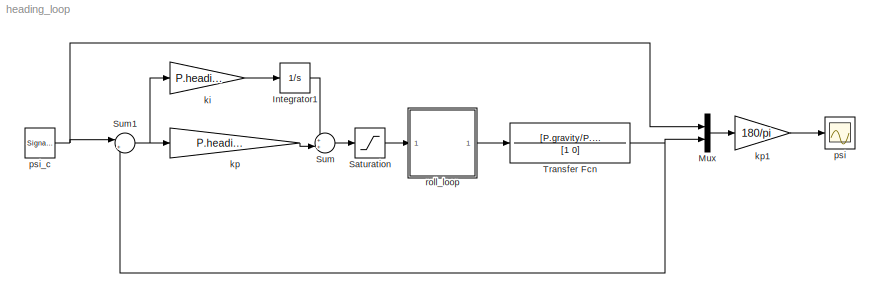
MODEL heading_loop
KIND model
BLOCK [Integrator] Integrator1
  Ports = [1, 1]
  SID = 10
BLOCK [Mux] Mux
  DisplayOption = bar
  Inputs = 2
  Ports = [2, 1]
  SID = 12
BLOCK [Saturate] Saturation
  LowerLimit = -30*pi/180
  OutDataType = fixdt(1, 16)
  OutScaling = 2^0
  SID = 4
  UpperLimit = 30*pi/180
BLOCK [Sum] Sum
  IconShape = round
  InputSameDT = off
  Inputs = ++|
  OutDataType = fixdt(1, 16)
  OutDataTypeMode = Inherit via internal rule
  OutDataTypeStr = Inherit: Inherit via internal rule
  OutScaling = 2^0
  Ports = [2, 1]
  SID = 5
  SaturateOnIntegerOverflow = off
BLOCK [Sum] Sum1
  IconShape = round
  InputSameDT = off
  Inputs = |+-
  OutDataType = fixdt(1, 16)
  OutDataTypeMode = Inherit via internal rule
  OutDataTypeStr = Inherit: Inherit via internal rule
  OutScaling = 2^0
  Ports = [2, 1]
  SID = 9
  SaturateOnIntegerOverflow = off
BLOCK [TransferFcn] Transfer Fcn
  Denominator = [1 0]
  Numerator = [P.gravity/P.Va]
  SID = 34
BLOCK [Gain] ki
  Gain = P.heading_ki
  OutDataType = fixdt(1, 16)
  OutDataTypeMode = Inherit via internal rule
  OutDataTypeStr = Inherit: Inherit via internal rule
  OutScaling = 2^0
  ParamDataTypeStr = Inherit: Inherit via internal rule
  ParameterDataType = fixdt(1, 16)
  ParameterDataTypeMode = Inherit via internal rule
  ParameterScaling = 2^0
  SID = 7
  SaturateOnIntegerOverflow = off
BLOCK [Gain] kp
  Gain = P.heading_kp
  OutDataType = fixdt(1, 16)
  OutDataTypeMode = Inherit via internal rule
  OutDataTypeStr = Inherit: Inherit via internal rule
  OutScaling = 2^0
  ParamDataTypeStr = Inherit: Inherit via internal rule
  ParameterDataType = fixdt(1, 16)
  ParameterDataTypeMode = Inherit via internal rule
  ParameterScaling = 2^0
  SID = 8
  SaturateOnIntegerOverflow = off
BLOCK [Gain] kp1
  Gain = 180/pi
  OutDataType = fixdt(1, 16)
  OutDataTypeMode = Inherit via internal rule
  OutDataTypeStr = Inherit: Inherit via internal rule
  OutScaling = 2^0
  ParamDataTypeStr = Inherit: Inherit via internal rule
  ParameterDataType = fixdt(1, 16)
  ParameterDataTypeMode = Inherit via internal rule
  ParameterScaling = 2^0
  SID = 15
  SaturateOnIntegerOverflow = off
BLOCK [Scope] psi
  DataFormat = StructureWithTime
  Floating = off
  NumInputPorts = 1
  Ports = [1]
  SID = 13
  SampleTime = 0
  TimeRange = 100
  YMax = 60
  YMin = -40
BLOCK [SignalGenerator] psi_c
  Amplitude = 25*pi/180
  Frequency = .01
  Ports = [0, 1]
  SID = 11
  WaveForm = square
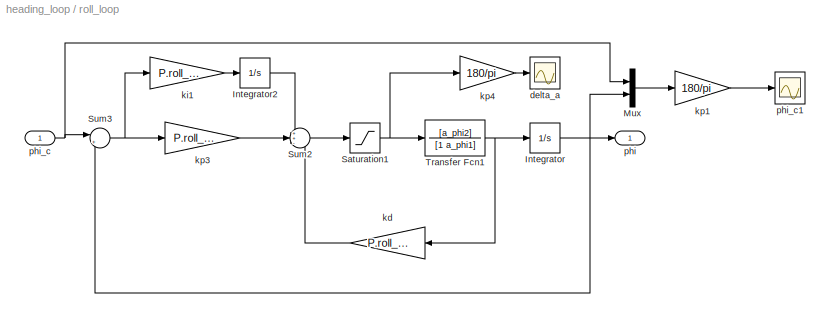
BLOCK [SubSystem] roll_loop
  FunctionWithSeparateData = off
  MaskHideContents = off
  MinAlgLoopOccurrences = off
  Opaque = off
  Ports = [1, 1]
  PropExecContextOutsideSubsystem = off
  RTWSystemCode = Auto
  RequestExecContextInheritance = off
  SID = 28
BLOCK [Integrator] roll_loop/Integrator
  Ports = [1, 1]
  SID = 17
BLOCK [Integrator] roll_loop/Integrator2
  Ports = [1, 1]
  SID = 18
BLOCK [Mux] roll_loop/Mux
  DisplayOption = bar
  Inputs = 2
  Ports = [2, 1]
  SID = 31
BLOCK [Saturate] roll_loop/Saturation1
  LowerLimit = -delta_a_max
  OutDataType = fixdt(1, 16)
  OutScaling = 2^0
  SID = 19
  UpperLimit = delta_a_max
BLOCK [Sum] roll_loop/Sum2
  IconShape = round
  InputSameDT = off
  Inputs = ++-
  OutDataType = fixdt(1, 16)
  OutDataTypeMode = Inherit via internal rule
  OutDataTypeStr = Inherit: Inherit via internal rule
  OutScaling = 2^0
  Ports = [3, 1]
  SID = 20
  SaturateOnIntegerOverflow = off
BLOCK [Sum] roll_loop/Sum3
  IconShape = round
  InputSameDT = off
  Inputs = |+-
  OutDataType = fixdt(1, 16)
  OutDataTypeMode = Inherit via internal rule
  OutDataTypeStr = Inherit: Inherit via internal rule
  OutScaling = 2^0
  Ports = [2, 1]
  SID = 21
  SaturateOnIntegerOverflow = off
BLOCK [TransferFcn] roll_loop/Transfer Fcn1
  Denominator = [1 a_phi1]
  Numerator = [a_phi2]
  SID = 22
BLOCK [Scope] roll_loop/delta_a
  DataFormat = StructureWithTime
  Floating = off
  NumInputPorts = 1
  Ports = [1]
  SID = 23
  SampleTime = 0
  SaveName = ScopeData2
  TimeRange = 100
  YMax = 50
  YMin = -50
BLOCK [Gain] roll_loop/kd
  Gain = P.roll_kd
  OutDataType = fixdt(1, 16)
  OutDataTypeMode = Inherit via internal rule
  OutDataTypeStr = Inherit: Inherit via internal rule
  OutScaling = 2^0
  ParamDataTypeStr = Inherit: Inherit via internal rule
  ParameterDataType = fixdt(1, 16)
  ParameterDataTypeMode = Inherit via internal rule
  ParameterScaling = 2^0
  SID = 24
  SaturateOnIntegerOverflow = off
BLOCK [Gain] roll_loop/ki1
  Gain = P.roll_ki
  OutDataType = fixdt(1, 16)
  OutDataTypeMode = Inherit via internal rule
  OutDataTypeStr = Inherit: Inherit via internal rule
  OutScaling = 2^0
  ParamDataTypeStr = Inherit: Inherit via internal rule
  ParameterDataType = fixdt(1, 16)
  ParameterDataTypeMode = Inherit via internal rule
  ParameterScaling = 2^0
  SID = 25
  SaturateOnIntegerOverflow = off
BLOCK [Gain] roll_loop/kp1
  Gain = 180/pi
  OutDataType = fixdt(1, 16)
  OutDataTypeMode = Inherit via internal rule
  OutDataTypeStr = Inherit: Inherit via internal rule
  OutScaling = 2^0
  ParamDataTypeStr = Inherit: Inherit via internal rule
  ParameterDataType = fixdt(1, 16)
  ParameterDataTypeMode = Inherit via internal rule
  ParameterScaling = 2^0
  SID = 32
  SaturateOnIntegerOverflow = off
BLOCK [Gain] roll_loop/kp3
  Gain = P.roll_kp
  OutDataType = fixdt(1, 16)
  OutDataTypeMode = Inherit via internal rule
  OutDataTypeStr = Inherit: Inherit via internal rule
  OutScaling = 2^0
  ParamDataTypeStr = Inherit: Inherit via internal rule
  ParameterDataType = fixdt(1, 16)
  ParameterDataTypeMode = Inherit via internal rule
  ParameterScaling = 2^0
  SID = 26
  SaturateOnIntegerOverflow = off
BLOCK [Gain] roll_loop/kp4
  Gain = 180/pi
  OutDataType = fixdt(1, 16)
  OutDataTypeMode = Inherit via internal rule
  OutDataTypeStr = Inherit: Inherit via internal rule
  OutScaling = 2^0
  ParamDataTypeStr = Inherit: Inherit via internal rule
  ParameterDataType = fixdt(1, 16)
  ParameterDataTypeMode = Inherit via internal rule
  ParameterScaling = 2^0
  SID = 27
  SaturateOnIntegerOverflow = off
BLOCK [Outport] roll_loop/phi
  IconDisplay = Port number
  SID = 29
BLOCK [Inport] roll_loop/phi_c
  IconDisplay = Port number
  SID = 30
BLOCK [Scope] roll_loop/phi_c1
  DataFormat = StructureWithTime
  Floating = off
  NumInputPorts = 1
  Ports = [1]
  SID = 33
  SampleTime = 0
  SaveName = ScopeData3
  TimeRange = 100
  YMax = 40
  YMin = -30
LINE Integrator1:1 -> Sum:1
LINE Mux:1 -> kp1:1
LINE Saturation:1 -> roll_loop:1
NET Sum1:1 -> ki:1, kp:1
LINE Sum:1 -> Saturation:1
NET Transfer Fcn:1 -> Mux:2, Sum1:2
LINE ki:1 -> Integrator1:1
LINE kp1:1 -> psi:1
LINE kp:1 -> Sum:2
NET psi_c:1 -> Mux:1, Sum1:1
LINE roll_loop/Integrator2:1 -> roll_loop/Sum2:1
NET roll_loop/Integrator:1 -> roll_loop/Mux:2, roll_loop/Sum3:2, roll_loop/phi:1
LINE roll_loop/Mux:1 -> roll_loop/kp1:1
NET roll_loop/Saturation1:1 -> roll_loop/Transfer Fcn1:1, roll_loop/kp4:1
LINE roll_loop/Sum2:1 -> roll_loop/Saturation1:1
NET roll_loop/Sum3:1 -> roll_loop/ki1:1, roll_loop/kp3:1
NET roll_loop/Transfer Fcn1:1 -> roll_loop/Integrator:1, roll_loop/kd:1
LINE roll_loop/kd:1 -> roll_loop/Sum2:3
LINE roll_loop/ki1:1 -> roll_loop/Integrator2:1
LINE roll_loop/kp1:1 -> roll_loop/phi_c1:1
LINE roll_loop/kp3:1 -> roll_loop/Sum2:2
LINE roll_loop/kp4:1 -> roll_loop/delta_a:1
NET roll_loop/phi_c:1 -> roll_loop/Mux:1, roll_loop/Sum3:1
LINE roll_loop:1 -> Transfer Fcn:1
note: NET lines group one-source signal fan-out (src -> all destinations, sorted); 1:1 wires keep LINE
